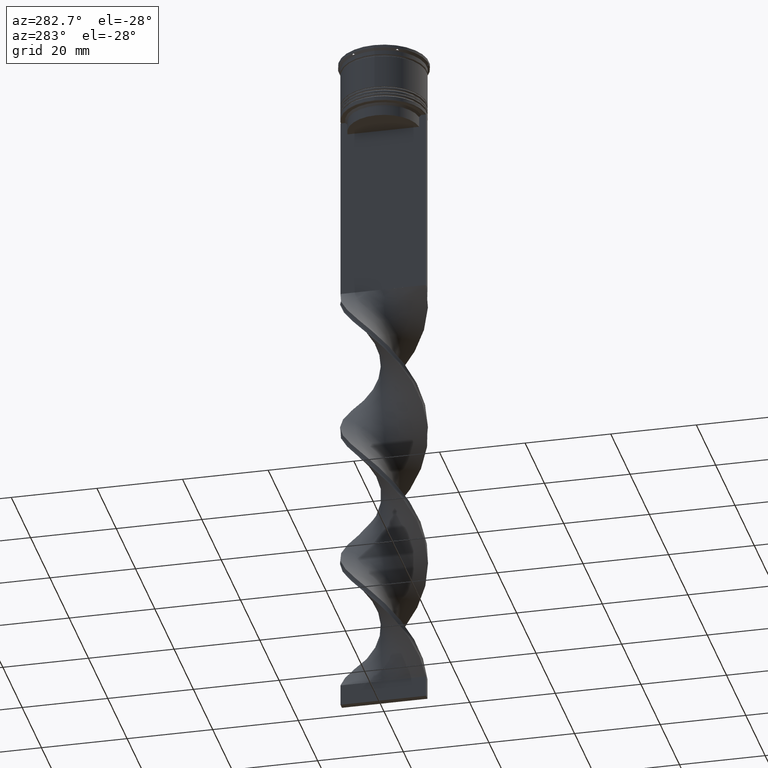
[diagram: clean part render]
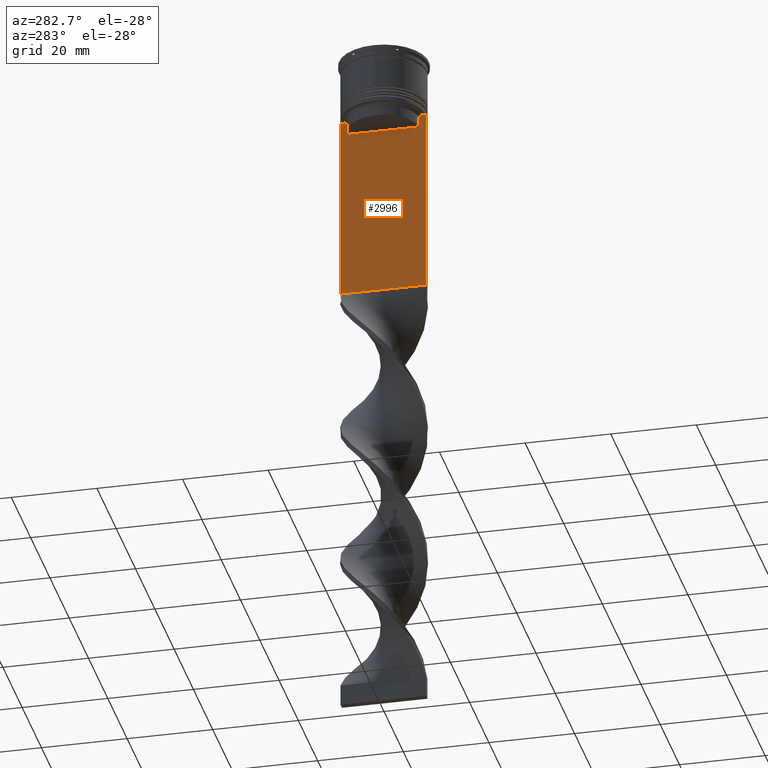
[diagram: same view with one face highlighted and labeled with its STEP entity id]
A machine part, auxiliary view. The second image highlights one B-rep face of the part: STEP entity #2996.
In plain terms, the highlighted planar face has unit normal (-1, 0, 0).
Its self-contained STEP definition (entity closure, byte-faithful):
#45 = CARTESIAN_POINT ( 'NONE',  ( -0.7499999999999997780, -8.366450860430608927, -17.00000000000000000 ) ) ;
#114 = ORIENTED_EDGE ( 'NONE', *, *, #1975, .F. ) ;
#162 = CARTESIAN_POINT ( 'NONE',  ( -0.7499999999999997780, 8.366450860430608927, -14.50000000000000000 ) ) ;
#168 = DIRECTION ( 'NONE',  ( 0.000000000000000000, -1.000000000000000000, 0.000000000000000000 ) ) ;
#258 = CARTESIAN_POINT ( 'NONE',  ( -0.7499999999999997780, -10.00000000000000533, -14.00000000000000178 ) ) ;
#309 = VERTEX_POINT ( 'NONE', #2081 ) ;
#358 = VERTEX_POINT ( 'NONE', #1907 ) ;
#375 = CARTESIAN_POINT ( 'NONE',  ( -0.7499999999999997780, -10.00000000000000533, 6.056171120131581098 ) ) ;
#433 = PLANE ( 'NONE',  #3269 ) ;
#439 = LINE ( 'NONE', #1644, #2104 ) ;
#445 = EDGE_CURVE ( 'NONE', #3038, #718, #3100, .T. ) ;
#468 = VECTOR ( 'NONE', #1164, 1000.000000000000000 ) ;
#506 = CARTESIAN_POINT ( 'NONE',  ( -0.7499999999999997780, 9.871550030263740894, -14.00000000000000178 ) ) ;
#507 = ORIENTED_EDGE ( 'NONE', *, *, #2068, .F. ) ;
#612 = ORIENTED_EDGE ( 'NONE', *, *, #3506, .F. ) ;
#615 = EDGE_CURVE ( 'NONE', #358, #2188, #3569, .T. ) ;
#620 = VERTEX_POINT ( 'NONE', #3273 ) ;
#634 = DIRECTION ( 'NONE',  ( 0.000000000000000000, -1.000000000000000000, 0.000000000000000000 ) ) ;
#640 = ORIENTED_EDGE ( 'NONE', *, *, #445, .F. ) ;
#662 = ORIENTED_EDGE ( 'NONE', *, *, #3299, .F. ) ;
#718 = VERTEX_POINT ( 'NONE', #1787 ) ;
#726 = LINE ( 'NONE', #3354, #1870 ) ;
#744 = CARTESIAN_POINT ( 'NONE',  ( -0.7499999999999997780, -10.00000000000000533, 6.056171120131581098 ) ) ;
#767 = CARTESIAN_POINT ( 'NONE',  ( -0.7499999999999997780, -8.701063080777123204, -14.16668447713511547 ) ) ;
#833 = VERTEX_POINT ( 'NONE', #45 ) ;
#852 = CARTESIAN_POINT ( 'NONE',  ( -0.7499999999999997780, -10.00000000000000533, -14.00000000000000178 ) ) ;
#876 = CARTESIAN_POINT ( 'NONE',  ( -0.7499999999999997780, -8.868342573446296839, -14.00000000000000178 ) ) ;
#911 = CARTESIAN_POINT ( 'NONE',  ( -0.7499999999999997780, 9.999999999999998224, -58.00000000000000000 ) ) ;
#1054 = ORIENTED_EDGE ( 'NONE', *, *, #615, .F. ) ;
#1155 = CARTESIAN_POINT ( 'NONE',  ( -0.7499999999999998890, -10.00000000000000533, -58.00000000000000000 ) ) ;
#1164 = DIRECTION ( 'NONE',  ( 0.000000000000000000, -1.000000000000000000, 0.000000000000000000 ) ) ;
#1238 = VECTOR ( 'NONE', #1534, 1000.000000000000000 ) ;
#1316 = DIRECTION ( 'NONE',  ( 0.000000000000000000, 0.000000000000000000, -1.000000000000000000 ) ) ;
#1414 = EDGE_CURVE ( 'NONE', #2274, #2131, #2029, .T. ) ;
#1465 = DIRECTION ( 'NONE',  ( 0.000000000000000000, -1.000000000000000000, 0.000000000000000000 ) ) ;
#1534 = DIRECTION ( 'NONE',  ( 0.000000000000000000, 0.000000000000000000, -1.000000000000000000 ) ) ;
#1639 = DIRECTION ( 'NONE',  ( -1.000000000000000000, 0.000000000000000000, 0.000000000000000000 ) ) ;
#1644 = CARTESIAN_POINT ( 'NONE',  ( -0.7499999999999997780, 8.400000000000003908, -17.00000000000000000 ) ) ;
#1654 = LINE ( 'NONE', #2267, #1680 ) ;
#1680 = VECTOR ( 'NONE', #3429, 1000.000000000000000 ) ;
#1688 = ORIENTED_EDGE ( 'NONE', *, *, #1414, .F. ) ;
#1690 = ORIENTED_EDGE ( 'NONE', *, *, #3235, .F. ) ;
#1711 = LINE ( 'NONE', #3546, #2842 ) ;
#1787 = CARTESIAN_POINT ( 'NONE',  ( -0.7499999999999997780, -9.871550030263740894, -14.00000000000000178 ) ) ;
#1870 = VECTOR ( 'NONE', #2234, 1000.000000000000000 ) ;
#1907 = CARTESIAN_POINT ( 'NONE',  ( -0.7499999999999997780, 9.999999999999998224, -14.00000000000000178 ) ) ;
#1919 = CARTESIAN_POINT ( 'NONE',  ( -0.7499999999999997780, -10.00000000000000533, -14.00000000000000178 ) ) ;
#1975 = EDGE_CURVE ( 'NONE', #833, #620, #2427, .T. ) ;
#2018 = DIRECTION ( 'NONE',  ( 0.000000000000000000, 1.000000000000000000, 0.000000000000000000 ) ) ;
#2029 = B_SPLINE_CURVE_WITH_KNOTS ( 'NONE', 3,
 ( #3714, #2212, #2601, #162 ),
 .UNSPECIFIED., .F., .F.,
 ( 4, 4 ),
 ( 0.01512225952876174867, 0.01583070519299695222 ),
 .UNSPECIFIED. ) ;
#2050 = VECTOR ( 'NONE', #634, 1000.000000000000000 ) ;
#2068 = EDGE_CURVE ( 'NONE', #2188, #2274, #1654, .T. ) ;
#2081 = CARTESIAN_POINT ( 'NONE',  ( -0.7499999999999997780, -10.00000000000000533, -14.00000000000000178 ) ) ;
#2104 = VECTOR ( 'NONE', #168, 1000.000000000000000 ) ;
#2131 = VERTEX_POINT ( 'NONE', #3096 ) ;
#2143 = LINE ( 'NONE', #3350, #1238 ) ;
#2188 = VERTEX_POINT ( 'NONE', #506 ) ;
#2212 = CARTESIAN_POINT ( 'NONE',  ( -0.7499999999999997780, 8.701063075415252257, -14.16668448247791723 ) ) ;
#2234 = DIRECTION ( 'NONE',  ( 0.000000000000000000, 0.000000000000000000, -1.000000000000000000 ) ) ;
#2267 = CARTESIAN_POINT ( 'NONE',  ( -0.7499999999999997780, -10.00000000000000533, -14.00000000000000178 ) ) ;
#2274 = VERTEX_POINT ( 'NONE', #2346 ) ;
#2301 = EDGE_CURVE ( 'NONE', #2487, #3716, #1711, .T. ) ;
#2313 = ORIENTED_EDGE ( 'NONE', *, *, #2301, .F. ) ;
#2346 = CARTESIAN_POINT ( 'NONE',  ( -0.7499999999999997780, 8.868342573446296839, -14.00000000000000178 ) ) ;
#2427 = LINE ( 'NONE', #3625, #3900 ) ;
#2475 = LINE ( 'NONE', #375, #2532 ) ;
#2487 = VERTEX_POINT ( 'NONE', #1155 ) ;
#2532 = VECTOR ( 'NONE', #1316, 1000.000000000000000 ) ;
#2601 = CARTESIAN_POINT ( 'NONE',  ( -0.7499999999999997780, 8.533766897779926808, -14.33335221373273782 ) ) ;
#2637 = CARTESIAN_POINT ( 'NONE',  ( -0.7499999999999997780, -8.366450860430608927, -14.50000000000000000 ) ) ;
#2733 = ORIENTED_EDGE ( 'NONE', *, *, #2829, .T. ) ;
#2829 = EDGE_CURVE ( 'NONE', #358, #3716, #2143, .T. ) ;
#2842 = VECTOR ( 'NONE', #2018, 1000.000000000000000 ) ;
#2873 = DIRECTION ( 'NONE',  ( 0.000000000000000000, 0.000000000000000000, 1.000000000000000000 ) ) ;
#2898 = CARTESIAN_POINT ( 'NONE',  ( -0.7499999999999997780, -8.868342573446296839, -14.00000000000000178 ) ) ;
#2937 = CARTESIAN_POINT ( 'NONE',  ( -0.7499999999999997780, -8.533766903463440912, -14.33335220807192201 ) ) ;
#2990 = LINE ( 'NONE', #258, #3591 ) ;
#2996 = ADVANCED_FACE ( 'NONE', ( #3753 ), #433, .T. ) ;
#3038 = VERTEX_POINT ( 'NONE', #876 ) ;
#3054 = CARTESIAN_POINT ( 'NONE',  ( -0.7499999999999997780, 8.366450860430608927, -17.00000000000000000 ) ) ;
#3081 = EDGE_LOOP ( 'NONE', ( #1688, #507, #1054, #2733, #2313, #3232, #1690, #640, #612, #114, #3864, #662 ) ) ;
#3096 = CARTESIAN_POINT ( 'NONE',  ( -0.7499999999999997780, 8.366450860430608927, -14.50000000000000000 ) ) ;
#3100 = LINE ( 'NONE', #1919, #2050 ) ;
#3232 = ORIENTED_EDGE ( 'NONE', *, *, #3302, .F. ) ;
#3235 = EDGE_CURVE ( 'NONE', #718, #309, #2990, .T. ) ;
#3269 = AXIS2_PLACEMENT_3D ( 'NONE', #744, #1639, #2873 ) ;
#3273 = CARTESIAN_POINT ( 'NONE',  ( -0.7499999999999997780, -8.366450860430608927, -14.50000000000000000 ) ) ;
#3299 = EDGE_CURVE ( 'NONE', #2131, #3799, #726, .T. ) ;
#3302 = EDGE_CURVE ( 'NONE', #309, #2487, #2475, .T. ) ;
#3326 = DIRECTION ( 'NONE',  ( -0.000000000000000000, -0.000000000000000000, 1.000000000000000000 ) ) ;
#3350 = CARTESIAN_POINT ( 'NONE',  ( -0.7499999999999997780, 9.999999999999998224, 6.056171120131581098 ) ) ;
#3354 = CARTESIAN_POINT ( 'NONE',  ( -0.7499999999999997780, 8.366450860430608927, 0.000000000000000000 ) ) ;
#3429 = DIRECTION ( 'NONE',  ( 0.000000000000000000, -1.000000000000000000, 0.000000000000000000 ) ) ;
#3506 = EDGE_CURVE ( 'NONE', #620, #3038, #3573, .T. ) ;
#3546 = CARTESIAN_POINT ( 'NONE',  ( -0.7499999999999997780, -10.00000000000000533, -58.00000000000000000 ) ) ;
#3567 = EDGE_CURVE ( 'NONE', #3799, #833, #439, .T. ) ;
#3569 = LINE ( 'NONE', #852, #468 ) ;
#3573 = B_SPLINE_CURVE_WITH_KNOTS ( 'NONE', 3,
 ( #2637, #2937, #767, #2898 ),
 .UNSPECIFIED., .F., .F.,
 ( 4, 4 ),
 ( 0.03866293624047253963, 0.03937282246709321309 ),
 .UNSPECIFIED. ) ;
#3591 = VECTOR ( 'NONE', #1465, 1000.000000000000000 ) ;
#3625 = CARTESIAN_POINT ( 'NONE',  ( -0.7499999999999997780, -8.366450860430608927, 0.000000000000000000 ) ) ;
#3714 = CARTESIAN_POINT ( 'NONE',  ( -0.7499999999999997780, 8.868342573446296839, -14.00000000000000178 ) ) ;
#3716 = VERTEX_POINT ( 'NONE', #911 ) ;
#3753 = FACE_OUTER_BOUND ( 'NONE', #3081, .T. ) ;
#3799 = VERTEX_POINT ( 'NONE', #3054 ) ;
#3864 = ORIENTED_EDGE ( 'NONE', *, *, #3567, .F. ) ;
#3900 = VECTOR ( 'NONE', #3326, 1000.000000000000000 ) ;